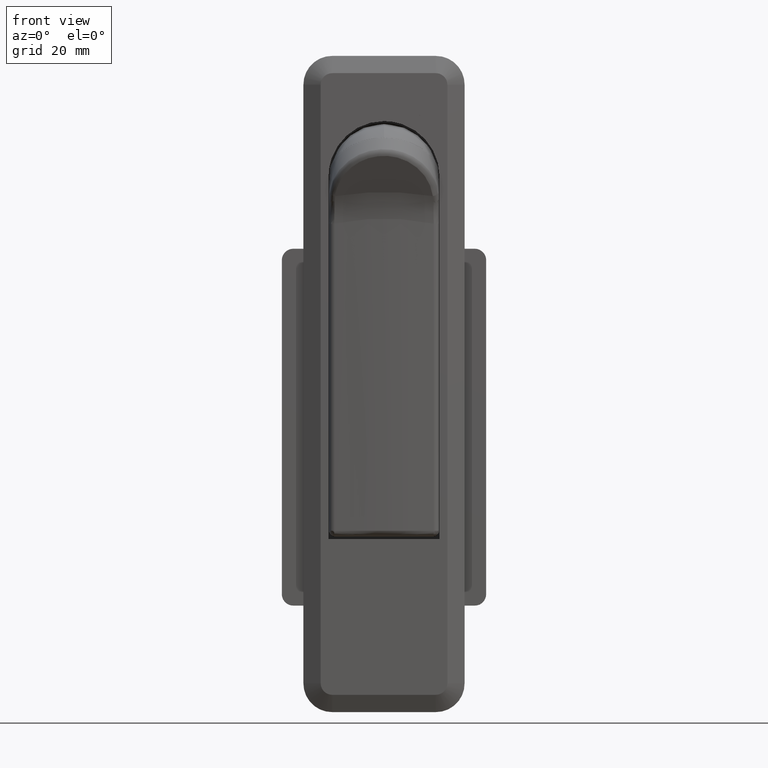
[diagram: clean part render]
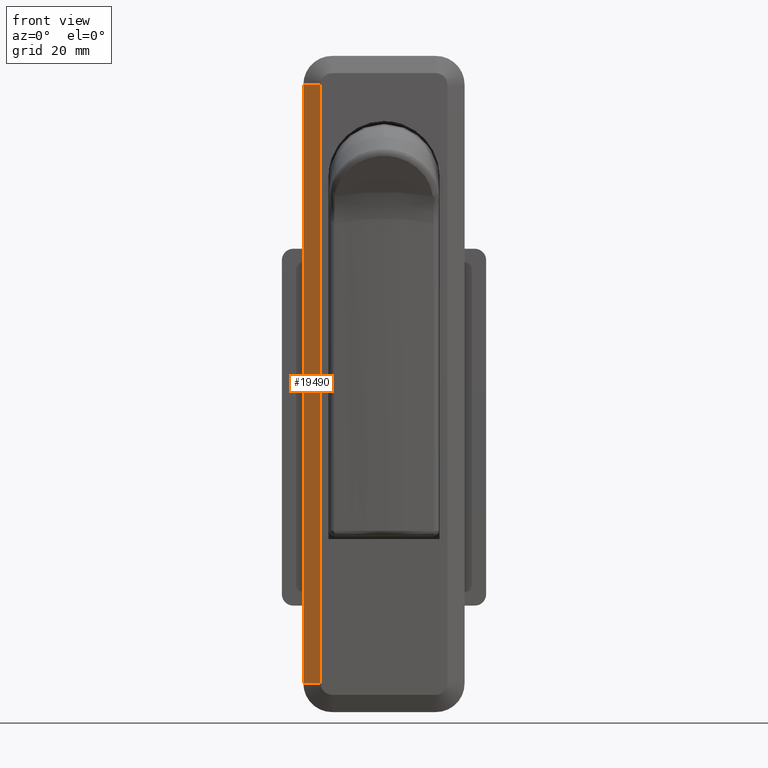
[diagram: same view with one face highlighted and labeled with its STEP entity id]
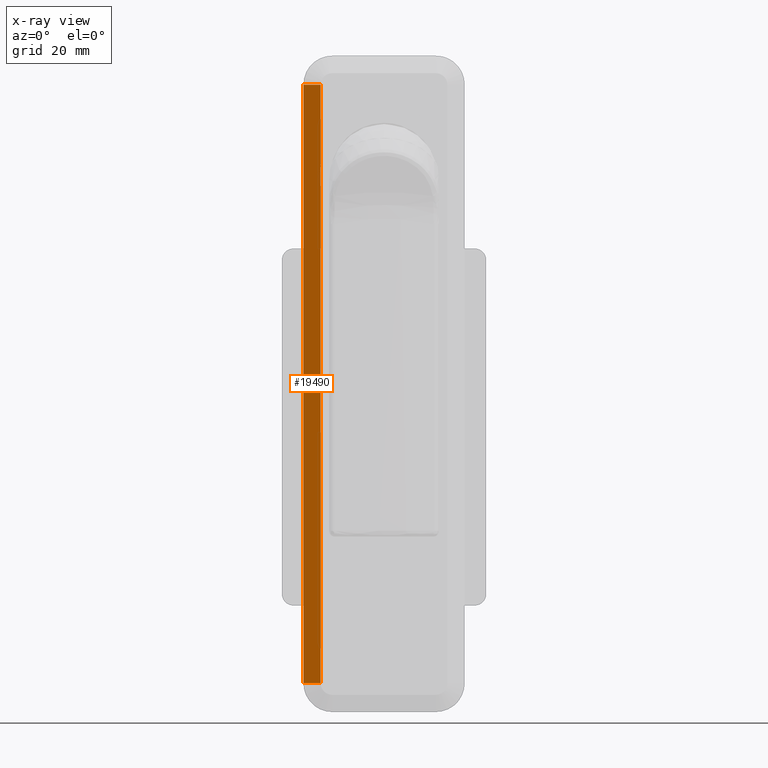
[diagram: x-ray of the same camera — body ghosted, the highlighted face saturated]
A machine part, front view. The second image highlights one B-rep face of the part: STEP entity #19490.
The next image is the same camera in x-ray: the body ghosted, the highlighted face saturated — about 0% of this face is hidden behind the body in this view.
In plain terms, the highlighted face is a freeform B-spline surface patch.
Its self-contained STEP definition (entity closure, byte-faithful):
#15946=CARTESIAN_POINT('',(-11.0,-3.0,16.0));
#15947=VERTEX_POINT('',#15946);
#15960=CARTESIAN_POINT('',(-11.0,-3.0,-88.0));
#15961=VERTEX_POINT('',#15960);
#15962=CARTESIAN_POINT('',(-11.0,-3.0,16.0));
#15963=CARTESIAN_POINT('',(-11.0,-3.0,-88.0));
#15964=QUASI_UNIFORM_CURVE('',1,(#15962,#15963),.UNSPECIFIED.,.F.,.U.);
#15965=EDGE_CURVE('',#15947,#15961,#15964,.T.);
#19406=CARTESIAN_POINT('',(-14.0,-1.499999999999946,16.0));
#19407=VERTEX_POINT('',#19406);
#19408=CARTESIAN_POINT('',(-14.0,-1.499999999999946,16.0));
#19409=CARTESIAN_POINT('',(-11.0,-3.0,16.0));
#19410=QUASI_UNIFORM_CURVE('',1,(#19408,#19409),.UNSPECIFIED.,.F.,.U.);
#19411=EDGE_CURVE('',#19407,#15947,#19410,.T.);
#19469=CARTESIAN_POINT('',(-10.850150005814580,-3.074924997092711,-93.194799798427823));
#19470=CARTESIAN_POINT('',(-14.149850074651690,-1.425074962674100,-93.194799798427823));
#19471=CARTESIAN_POINT('',(-10.850150005814591,-3.074924997092725,21.194802587925199));
#19472=CARTESIAN_POINT('',(-14.149850074651701,-1.425074962674114,21.194802587925199));
#19473=B_SPLINE_SURFACE_WITH_KNOTS('',1,1,((#19469,#19471),(#19470,#19472)),.UNSPECIFIED.,.F.,.F.,.U.,(2,2),(2,2),(0.0,3.689176829640283),(0.0,114.389602386353000),.UNSPECIFIED.);
#19474=CARTESIAN_POINT('',(-14.0,-1.499999999999946,-88.0));
#19475=VERTEX_POINT('',#19474);
#19476=CARTESIAN_POINT('',(-14.0,-1.499999999999946,-88.0));
#19477=CARTESIAN_POINT('',(-11.0,-3.0,-88.0));
#19478=QUASI_UNIFORM_CURVE('',1,(#19476,#19477),.UNSPECIFIED.,.F.,.U.);
#19479=EDGE_CURVE('',#19475,#15961,#19478,.T.);
#19480=ORIENTED_EDGE('',*,*,#19479,.T.);
#19481=ORIENTED_EDGE('',*,*,#15965,.F.);
#19482=ORIENTED_EDGE('',*,*,#19411,.F.);
#19483=CARTESIAN_POINT('',(-14.0,-1.499999999999946,-88.0));
#19484=CARTESIAN_POINT('',(-14.0,-1.499999999999946,16.0));
#19485=QUASI_UNIFORM_CURVE('',1,(#19483,#19484),.UNSPECIFIED.,.F.,.U.);
#19486=EDGE_CURVE('',#19475,#19407,#19485,.T.);
#19487=ORIENTED_EDGE('',*,*,#19486,.F.);
#19488=EDGE_LOOP('',(#19480,#19481,#19482,#19487));
#19489=FACE_OUTER_BOUND('',#19488,.T.);
#19490=ADVANCED_FACE('',(#19489),#19473,.F.);